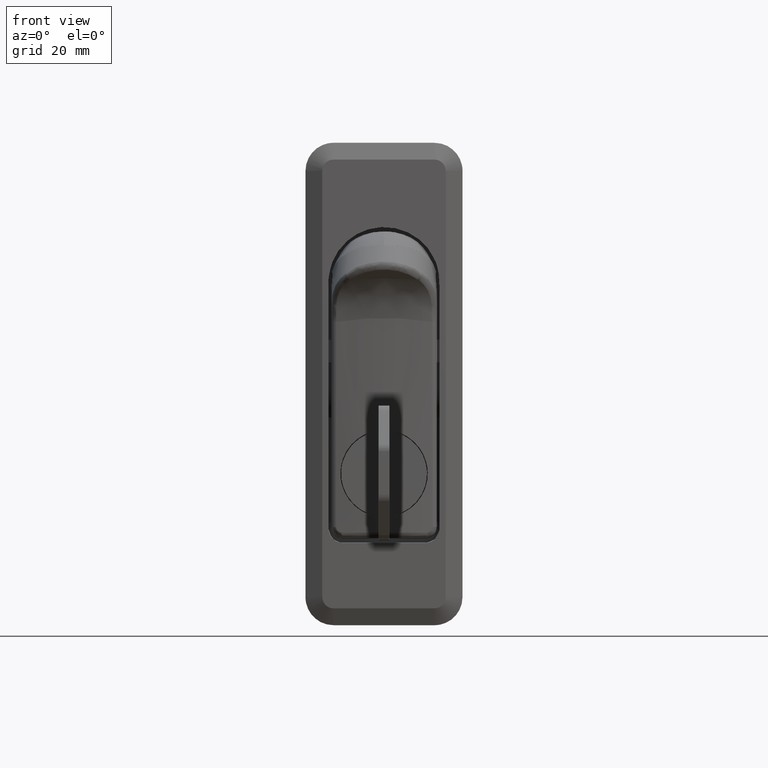
[diagram: clean part render]
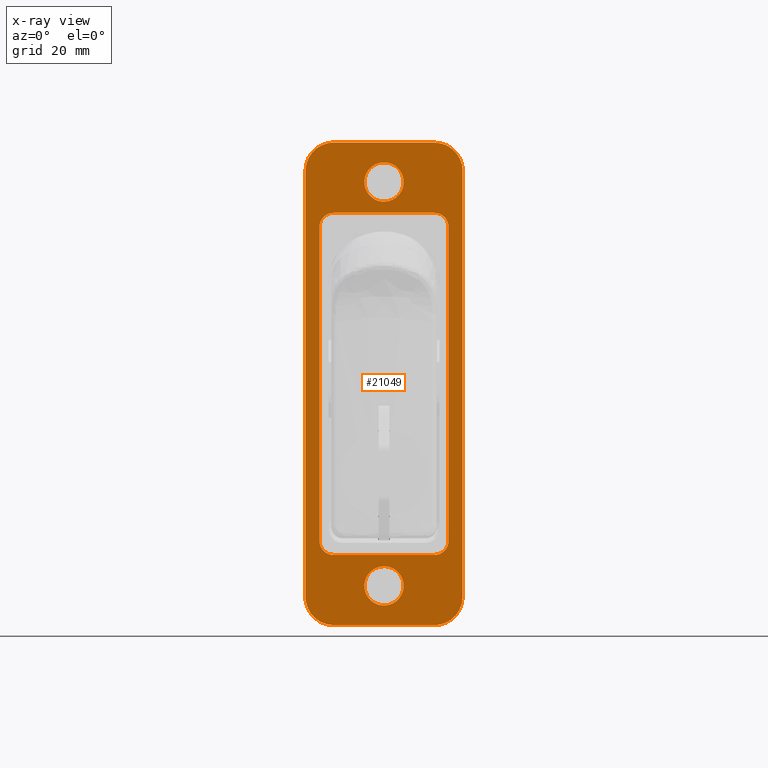
[diagram: x-ray — body ghosted, one internal face saturated and labeled with its STEP entity id]
A machine part, front view, then the same camera in x-ray: the body is ghosted and one INTERNAL B-rep face — a face not visible from any outside direction — is saturated and labeled: STEP entity #21049.
In plain terms, the highlighted face is a freeform B-spline surface patch.
Its self-contained STEP definition (entity closure, byte-faithful):
#14081=CARTESIAN_POINT('',(-3.677614E-015,-3.493471794421388,-54.213669889273618));
#14082=VERTEX_POINT('',#14081);
#14088=CARTESIAN_POINT('',(-3.552714E-015,0.0,-57.500000000000000));
#14089=VERTEX_POINT('',#14088);
#14090=CARTESIAN_POINT('',(-3.552714E-015,0.0,-57.500000000000000));
#14091=CARTESIAN_POINT('',(-3.552714E-015,-3.292471232467242,-57.499999999999993));
#14092=CARTESIAN_POINT('',(-3.677614E-015,-3.493471794421388,-54.213669889273618));
#14100=(BOUNDED_CURVE()B_SPLINE_CURVE(2,(#14090,#14091,#14092),.UNSPECIFIED.,.F.,.U.)B_SPLINE_CURVE_WITH_KNOTS((3,3),(0.500000000000000,0.739332962152903),.UNSPECIFIED.)CURVE()GEOMETRIC_REPRESENTATION_ITEM()RATIONAL_B_SPLINE_CURVE((1.0,0.719603993387512,0.976072041482317))REPRESENTATION_ITEM(''));
#14101=EDGE_CURVE('',#14089,#14082,#14100,.T.);
#14103=CARTESIAN_POINT('',(-3.675170E-015,1.230662910609450,-57.276502525628551));
#14104=VERTEX_POINT('',#14103);
#14105=CARTESIAN_POINT('',(-3.675170E-015,1.230662910609450,-57.276502525628551));
#14106=CARTESIAN_POINT('',(-3.552714E-015,0.635625851497328,-57.499999999999993));
#14107=CARTESIAN_POINT('',(-3.552714E-015,0.0,-57.500000000000000));
#14115=(BOUNDED_CURVE()B_SPLINE_CURVE(2,(#14105,#14106,#14107),.UNSPECIFIED.,.F.,.U.)B_SPLINE_CURVE_WITH_KNOTS((3,3),(0.440284170875872,0.500000000000000),.UNSPECIFIED.)CURVE()GEOMETRIC_REPRESENTATION_ITEM()RATIONAL_B_SPLINE_CURVE((0.893499554607573,0.930038554374880,1.0))REPRESENTATION_ITEM(''));
#14116=EDGE_CURVE('',#14104,#14089,#14115,.T.);
#14166=CARTESIAN_POINT('',(-3.552714E-015,0.0,-50.499999999999993));
#14167=VERTEX_POINT('',#14166);
#14168=CARTESIAN_POINT('',(-3.552714E-015,0.0,-50.499999999999993));
#14169=CARTESIAN_POINT('',(-3.552714E-015,3.500000000000000,-50.499999999999993));
#14170=CARTESIAN_POINT('',(-3.552714E-015,3.500000000000000,-54.0));
#14171=CARTESIAN_POINT('',(-3.552714E-015,3.500000000000000,-56.424133584552777));
#14172=CARTESIAN_POINT('',(-3.675170E-015,1.230662910609450,-57.276502525628544));
#14180=(BOUNDED_CURVE()B_SPLINE_CURVE(2,(#14168,#14169,#14170,#14171,#14172),.UNSPECIFIED.,.F.,.U.)B_SPLINE_CURVE_WITH_KNOTS((3,2,3),(0.0,0.250000000000000,0.440284170875872),.UNSPECIFIED.)CURVE()GEOMETRIC_REPRESENTATION_ITEM()RATIONAL_B_SPLINE_CURVE((1.0,0.707106781186547,1.0,0.777068226811668,0.893499554607573))REPRESENTATION_ITEM(''));
#14181=EDGE_CURVE('',#14167,#14104,#14180,.T.);
#14183=CARTESIAN_POINT('',(-3.677614E-015,-3.493471794421387,-54.213669889273618));
#14184=CARTESIAN_POINT('',(-3.552714E-015,-3.500000000000000,-54.106934672449221));
#14185=CARTESIAN_POINT('',(-3.552714E-015,-3.500000000000000,-54.0));
#14186=CARTESIAN_POINT('',(-3.552714E-015,-3.500000000000000,-50.499999999999993));
#14187=CARTESIAN_POINT('',(-3.552714E-015,0.0,-50.499999999999993));
#14195=(BOUNDED_CURVE()B_SPLINE_CURVE(2,(#14183,#14184,#14185,#14186,#14187),.UNSPECIFIED.,.F.,.U.)B_SPLINE_CURVE_WITH_KNOTS((3,2,3),(0.739332962152903,0.750000000000000,1.0),.UNSPECIFIED.)CURVE()GEOMETRIC_REPRESENTATION_ITEM()RATIONAL_B_SPLINE_CURVE((0.976072041482319,0.987502787799036,1.0,0.707106781186547,1.0))REPRESENTATION_ITEM(''));
#14196=EDGE_CURVE('',#14082,#14167,#14195,.T.);
#14409=CARTESIAN_POINT('',(-3.677614E-015,-3.493471794421388,17.786330110726372));
#14410=VERTEX_POINT('',#14409);
#14416=CARTESIAN_POINT('',(-3.552714E-015,0.0,14.500000000000000));
#14417=VERTEX_POINT('',#14416);
#14418=CARTESIAN_POINT('',(-3.552714E-015,0.0,14.500000000000000));
#14419=CARTESIAN_POINT('',(-3.552714E-015,-3.292471232467242,14.500000000000000));
#14420=CARTESIAN_POINT('',(-3.677614E-015,-3.493471794421388,17.786330110726368));
#14428=(BOUNDED_CURVE()B_SPLINE_CURVE(2,(#14418,#14419,#14420),.UNSPECIFIED.,.F.,.U.)B_SPLINE_CURVE_WITH_KNOTS((3,3),(0.500000000000000,0.739332962152903),.UNSPECIFIED.)CURVE()GEOMETRIC_REPRESENTATION_ITEM()RATIONAL_B_SPLINE_CURVE((1.0,0.719603993387512,0.976072041482317))REPRESENTATION_ITEM(''));
#14429=EDGE_CURVE('',#14417,#14410,#14428,.T.);
#14431=CARTESIAN_POINT('',(-3.422506E-015,1.230662910609452,14.723497474371451));
#14432=VERTEX_POINT('',#14431);
#14433=CARTESIAN_POINT('',(-3.422506E-015,1.230662910609452,14.723497474371449));
#14434=CARTESIAN_POINT('',(-3.552714E-015,0.635625851497329,14.499999999999998));
#14435=CARTESIAN_POINT('',(-3.552714E-015,0.0,14.500000000000000));
#14443=(BOUNDED_CURVE()B_SPLINE_CURVE(2,(#14433,#14434,#14435),.UNSPECIFIED.,.F.,.U.)B_SPLINE_CURVE_WITH_KNOTS((3,3),(0.440284170875872,0.500000000000000),.UNSPECIFIED.)CURVE()GEOMETRIC_REPRESENTATION_ITEM()RATIONAL_B_SPLINE_CURVE((0.893499554607573,0.930038554374879,1.0))REPRESENTATION_ITEM(''));
#14444=EDGE_CURVE('',#14432,#14417,#14443,.T.);
#14494=CARTESIAN_POINT('',(-3.552714E-015,0.0,21.500000000000000));
#14495=VERTEX_POINT('',#14494);
#14496=CARTESIAN_POINT('',(-3.552714E-015,0.0,21.500000000000000));
#14497=CARTESIAN_POINT('',(-3.552714E-015,3.500000000000000,21.500000000000000));
#14498=CARTESIAN_POINT('',(-3.552714E-015,3.500000000000000,18.0));
#14499=CARTESIAN_POINT('',(-3.552714E-015,3.500000000000000,15.575866415447225));
#14500=CARTESIAN_POINT('',(-3.422506E-015,1.230662910609452,14.723497474371452));
#14508=(BOUNDED_CURVE()B_SPLINE_CURVE(2,(#14496,#14497,#14498,#14499,#14500),.UNSPECIFIED.,.F.,.U.)B_SPLINE_CURVE_WITH_KNOTS((3,2,3),(0.0,0.250000000000000,0.440284170875871),.UNSPECIFIED.)CURVE()GEOMETRIC_REPRESENTATION_ITEM()RATIONAL_B_SPLINE_CURVE((1.0,0.707106781186547,1.0,0.777068226811668,0.893499554607572))REPRESENTATION_ITEM(''));
#14509=EDGE_CURVE('',#14495,#14432,#14508,.T.);
#14511=CARTESIAN_POINT('',(-3.677614E-015,-3.493471794421388,17.786330110726372));
#14512=CARTESIAN_POINT('',(-3.552714E-015,-3.500000000000000,17.893065327550779));
#14513=CARTESIAN_POINT('',(-3.552714E-015,-3.500000000000000,18.0));
#14514=CARTESIAN_POINT('',(-3.552714E-015,-3.500000000000000,21.500000000000000));
#14515=CARTESIAN_POINT('',(-3.552714E-015,0.0,21.500000000000000));
#14523=(BOUNDED_CURVE()B_SPLINE_CURVE(2,(#14511,#14512,#14513,#14514,#14515),.UNSPECIFIED.,.F.,.U.)B_SPLINE_CURVE_WITH_KNOTS((3,2,3),(0.739332962152903,0.750000000000000,1.0),.UNSPECIFIED.)CURVE()GEOMETRIC_REPRESENTATION_ITEM()RATIONAL_B_SPLINE_CURVE((0.976072041482318,0.987502787799036,1.0,0.707106781186547,1.0))REPRESENTATION_ITEM(''));
#14524=EDGE_CURVE('',#14410,#14495,#14523,.T.);
#18221=CARTESIAN_POINT('',(0.0,-11.500000000000121,10.0));
#18222=VERTEX_POINT('',#18221);
#18229=CARTESIAN_POINT('',(0.0,-9.000000000000119,12.500000000000000));
#18230=VERTEX_POINT('',#18229);
#18236=CARTESIAN_POINT('',(0.0,-11.500000000000110,10.0));
#18237=CARTESIAN_POINT('',(0.0,-11.500000000000107,12.500000000000000));
#18238=CARTESIAN_POINT('',(0.0,-9.000000000000108,12.500000000000000));
#18246=(BOUNDED_CURVE()B_SPLINE_CURVE(2,(#18236,#18237,#18238),.UNSPECIFIED.,.F.,.U.)CURVE()GEOMETRIC_REPRESENTATION_ITEM()QUASI_UNIFORM_CURVE()RATIONAL_B_SPLINE_CURVE((1.0,0.707106781186548,1.0))REPRESENTATION_ITEM(''));
#18247=EDGE_CURVE('',#18222,#18230,#18246,.T.);
#18266=CARTESIAN_POINT('',(0.0,9.0,12.500000000000000));
#18267=VERTEX_POINT('',#18266);
#18274=CARTESIAN_POINT('',(0.0,11.500000000000000,10.0));
#18275=VERTEX_POINT('',#18274);
#18281=CARTESIAN_POINT('',(0.0,9.0,12.500000000000000));
#18282=CARTESIAN_POINT('',(0.0,11.500000000000000,12.500000000000000));
#18283=CARTESIAN_POINT('',(0.0,11.500000000000000,10.0));
#18291=(BOUNDED_CURVE()B_SPLINE_CURVE(2,(#18281,#18282,#18283),.UNSPECIFIED.,.F.,.U.)CURVE()GEOMETRIC_REPRESENTATION_ITEM()QUASI_UNIFORM_CURVE()RATIONAL_B_SPLINE_CURVE((1.0,0.707106781186548,1.0))REPRESENTATION_ITEM(''));
#18292=EDGE_CURVE('',#18267,#18275,#18291,.T.);
#19010=CARTESIAN_POINT('',(0.0,11.500000000000000,-45.989129150267701));
#19011=VERTEX_POINT('',#19010);
#19026=CARTESIAN_POINT('',(0.0,9.0,-48.489689625733803));
#19027=VERTEX_POINT('',#19026);
#19041=CARTESIAN_POINT('',(0.0,11.500000000000000,-45.989129150267701));
#19042=CARTESIAN_POINT('',(0.0,11.500000000000000,-46.154215383934769));
#19043=CARTESIAN_POINT('',(0.0,11.483816064185840,-46.316545601772731));
#19044=CARTESIAN_POINT('',(0.0,11.436256324752920,-46.556075847320741));
#19045=CARTESIAN_POINT('',(0.0,11.416493622283401,-46.635253508343197));
#19046=CARTESIAN_POINT('',(0.0,11.368971266891981,-46.792247003309441));
#19047=CARTESIAN_POINT('',(0.0,11.341075858766819,-46.870281027129572));
#19048=CARTESIAN_POINT('',(0.0,11.247081613631609,-47.097285296645850));
#19049=CARTESIAN_POINT('',(0.0,11.170387799035350,-47.240845623781517));
#19050=CARTESIAN_POINT('',(0.0,11.057141126077690,-47.410664514096752));
#19051=CARTESIAN_POINT('',(0.0,11.033615006363030,-47.444142385285232));
#19052=CARTESIAN_POINT('',(0.0,10.984781268572140,-47.510110836388613));
#19053=CARTESIAN_POINT('',(0.0,10.959405133532210,-47.542683516857593));
#19054=CARTESIAN_POINT('',(0.0,10.881067156385379,-47.638253861385252));
#19055=CARTESIAN_POINT('',(0.0,10.826108208209799,-47.698896246355751));
#19056=CARTESIAN_POINT('',(0.0,10.653287457166130,-47.871898583125670));
#19057=CARTESIAN_POINT('',(0.0,10.527556822738241,-47.975418061977933));
#19058=CARTESIAN_POINT('',(0.0,10.356938074372319,-48.089700478894308));
#19059=CARTESIAN_POINT('',(0.0,10.322035410330709,-48.111851774601533));
#19060=CARTESIAN_POINT('',(0.0,10.251472245985420,-48.154221848664271));
#19061=CARTESIAN_POINT('',(0.0,10.215800250058919,-48.174456756970230));
#19062=CARTESIAN_POINT('',(0.0,10.107634747065740,-48.232363969213431));
#19063=CARTESIAN_POINT('',(0.0,9.960354127934409,-48.302126755310972));
#19064=CARTESIAN_POINT('',(0.0,9.807047482233891,-48.357224328191009));
#19065=CARTESIAN_POINT('',(0.0,9.689777495506567,-48.392974453394508));
#19066=CARTESIAN_POINT('',(0.0,9.650305159462015,-48.403960680585243));
#19067=CARTESIAN_POINT('',(0.0,9.570582232988475,-48.424039139586100));
#19068=CARTESIAN_POINT('',(0.0,9.530255426601258,-48.433143262091860));
#19069=CARTESIAN_POINT('',(0.0,9.328376248249898,-48.473492515968111));
#19070=CARTESIAN_POINT('',(0.0,9.165087300600289,-48.489689625733810));
#19071=CARTESIAN_POINT('',(0.0,8.999999999999998,-48.489689625733803));
#19072=B_SPLINE_CURVE_WITH_KNOTS('',3,(#19041,#19042,#19043,#19044,#19045,#19046,#19047,#19048,#19049,#19050,#19051,#19052,#19053,#19054,#19055,#19056,#19057,#19058,#19059,#19060,#19061,#19062,#19063,#19064,#19065,#19066,#19067,#19068,#19069,#19070,#19071),.UNSPECIFIED.,.F.,.U.,(4,2,2,2,2,2,2,2,2,2,2,1,2,2,2,4),(0.0,0.124999999999995,0.187499999999992,0.249999999999990,0.374999999999985,0.406249999999987,0.437499999999990,0.499999999999994,0.625000000000004,0.656250000000005,0.687500000000005,0.750000000000005,0.812500000000004,0.843750000000003,0.875000000000002,1.0),.UNSPECIFIED.);
#19073=EDGE_CURVE('',#19011,#19027,#19072,.T.);
#19095=CARTESIAN_POINT('',(0.0,-9.000000000000119,-48.489689625733803));
#19096=VERTEX_POINT('',#19095);
#19111=CARTESIAN_POINT('',(0.0,-11.500000000000121,-45.989129150267701));
#19112=VERTEX_POINT('',#19111);
#19126=CARTESIAN_POINT('',(-1.430700E-016,-9.000000000000119,-48.489689625733803));
#19127=CARTESIAN_POINT('',(-1.430700E-016,-9.165086658248500,-48.489689625733803));
#19128=CARTESIAN_POINT('',(-1.552930E-032,-9.327415141307306,-48.473494599859237));
#19129=CARTESIAN_POINT('',(0.0,-9.566939927793406,-48.425903736678727));
#19130=CARTESIAN_POINT('',(0.0,-9.646115286503532,-48.406128209653907));
#19131=CARTESIAN_POINT('',(0.0,-9.803103203583708,-48.358575275646579));
#19132=CARTESIAN_POINT('',(0.0,-9.881130554903850,-48.330663090618920));
#19133=CARTESIAN_POINT('',(0.0,-10.108107379448599,-48.236616744681427));
#19134=CARTESIAN_POINT('',(0.0,-10.251646394486629,-48.159882629747742));
#19135=CARTESIAN_POINT('',(0.0,-10.421435447159030,-48.046579656471451));
#19136=CARTESIAN_POINT('',(0.0,-10.454907188129891,-48.023041975302533));
#19137=CARTESIAN_POINT('',(0.0,-10.520863057209709,-47.974184518411221));
#19138=CARTESIAN_POINT('',(0.0,-10.553430328561729,-47.948795240157281));
#19139=CARTESIAN_POINT('',(0.0,-10.648968621109500,-47.870430382560620));
#19140=CARTESIAN_POINT('',(0.0,-10.709590152545490,-47.815453349527338));
#19141=CARTESIAN_POINT('',(0.0,-10.882531384915829,-47.642577831172979));
#19142=CARTESIAN_POINT('',(0.0,-10.986012051576100,-47.516810003044718));
#19143=CARTESIAN_POINT('',(0.0,-11.100248339426431,-47.346143822532973));
#19144=CARTESIAN_POINT('',(0.0,-11.122389993413160,-47.311232204602867));
#19145=CARTESIAN_POINT('',(0.0,-11.164735294533530,-47.240662015767967));
#19146=CARTESIAN_POINT('',(0.0,-11.184958447210549,-47.204986480379389));
#19147=CARTESIAN_POINT('',(0.0,-11.242832155562549,-47.096810240034088));
#19148=CARTESIAN_POINT('',(0.0,-11.312554993892361,-46.949515000535527));
#19149=CARTESIAN_POINT('',(0.0,-11.367620935710750,-46.796192730319319));
#19150=CARTESIAN_POINT('',(0.0,-11.403350295212300,-46.678910560172227));
#19151=CARTESIAN_POINT('',(0.0,-11.414330090033859,-46.639434083589400));
#19152=CARTESIAN_POINT('',(0.0,-11.434396642376390,-46.559702698649239));
#19153=CARTESIAN_POINT('',(0.0,-11.443494633043599,-46.519374128018477));
#19154=CARTESIAN_POINT('',(0.0,-11.483814233400540,-46.317500554687328));
#19155=CARTESIAN_POINT('',(0.0,-11.500000000000121,-46.154214761178757));
#19156=CARTESIAN_POINT('',(0.0,-11.500000000000121,-45.989129150267701));
#19157=B_SPLINE_CURVE_WITH_KNOTS('',3,(#19126,#19127,#19128,#19129,#19130,#19131,#19132,#19133,#19134,#19135,#19136,#19137,#19138,#19139,#19140,#19141,#19142,#19143,#19144,#19145,#19146,#19147,#19148,#19149,#19150,#19151,#19152,#19153,#19154,#19155,#19156),.UNSPECIFIED.,.F.,.U.,(4,2,2,2,2,2,2,2,2,2,2,1,2,2,2,4),(0.0,0.124999999999996,0.187499999999993,0.249999999999991,0.374999999999987,0.406249999999987,0.437499999999986,0.499999999999988,0.624999999999998,0.656250000000002,0.687500000000007,0.750000000000012,0.812500000000016,0.843750000000016,0.875000000000016,1.0),.UNSPECIFIED.);
#19158=EDGE_CURVE('',#19096,#19112,#19157,.T.);
#20201=CARTESIAN_POINT('',(0.0,-9.000000000000119,12.500000000000000));
#20202=CARTESIAN_POINT('',(0.0,9.0,12.500000000000000));
#20203=QUASI_UNIFORM_CURVE('',1,(#20201,#20202),.UNSPECIFIED.,.F.,.U.);
#20204=EDGE_CURVE('',#18230,#18267,#20203,.T.);
#20417=CARTESIAN_POINT('',(0.0,-9.000000000000119,-48.489689625733803));
#20418=CARTESIAN_POINT('',(0.0,9.0,-48.489689625733803));
#20419=QUASI_UNIFORM_CURVE('',1,(#20417,#20418),.UNSPECIFIED.,.F.,.U.);
#20420=EDGE_CURVE('',#19096,#19027,#20419,.T.);
#20608=CARTESIAN_POINT('',(0.0,-11.500000000000121,10.0));
#20609=CARTESIAN_POINT('',(0.0,-11.500000000000121,-45.989129150267701));
#20610=QUASI_UNIFORM_CURVE('',1,(#20608,#20609),.UNSPECIFIED.,.F.,.U.);
#20611=EDGE_CURVE('',#18222,#19112,#20610,.T.);
#20652=CARTESIAN_POINT('',(0.0,11.500000000000000,-45.989129150267701));
#20653=CARTESIAN_POINT('',(0.0,11.500000000000000,10.0));
#20654=QUASI_UNIFORM_CURVE('',1,(#20652,#20653),.UNSPECIFIED.,.F.,.U.);
#20655=EDGE_CURVE('',#19011,#18275,#20654,.T.);
#20667=CARTESIAN_POINT('',(0.0,8.999999999999890,25.0));
#20668=VERTEX_POINT('',#20667);
#20675=CARTESIAN_POINT('',(0.0,-9.0,25.0));
#20676=VERTEX_POINT('',#20675);
#20682=CARTESIAN_POINT('',(0.0,8.999999999999890,25.0));
#20683=CARTESIAN_POINT('',(0.0,-9.0,25.0));
#20684=QUASI_UNIFORM_CURVE('',1,(#20682,#20683),.UNSPECIFIED.,.F.,.U.);
#20685=EDGE_CURVE('',#20668,#20676,#20684,.T.);
#20704=CARTESIAN_POINT('',(0.0,14.0,20.0));
#20705=VERTEX_POINT('',#20704);
#20713=CARTESIAN_POINT('',(0.0,14.0,20.0));
#20714=CARTESIAN_POINT('',(0.0,13.999999999999892,25.0));
#20715=CARTESIAN_POINT('',(0.0,8.999999999999890,25.0));
#20723=(BOUNDED_CURVE()B_SPLINE_CURVE(2,(#20713,#20714,#20715),.UNSPECIFIED.,.F.,.U.)CURVE()GEOMETRIC_REPRESENTATION_ITEM()QUASI_UNIFORM_CURVE()RATIONAL_B_SPLINE_CURVE((1.0,0.707106781186548,1.0))REPRESENTATION_ITEM(''));
#20724=EDGE_CURVE('',#20705,#20668,#20723,.T.);
#20734=CARTESIAN_POINT('',(0.0,14.0,-56.0));
#20735=VERTEX_POINT('',#20734);
#20743=CARTESIAN_POINT('',(0.0,14.0,-56.0));
#20744=CARTESIAN_POINT('',(0.0,14.0,20.0));
#20745=QUASI_UNIFORM_CURVE('',1,(#20743,#20744),.UNSPECIFIED.,.F.,.U.);
#20746=EDGE_CURVE('',#20735,#20705,#20745,.T.);
#20765=CARTESIAN_POINT('',(0.0,9.0,-61.0));
#20766=VERTEX_POINT('',#20765);
#20774=CARTESIAN_POINT('',(0.0,9.0,-61.0));
#20775=CARTESIAN_POINT('',(0.0,13.999999999999998,-60.999999999999993));
#20776=CARTESIAN_POINT('',(0.0,14.0,-56.0));
#20784=(BOUNDED_CURVE()B_SPLINE_CURVE(2,(#20774,#20775,#20776),.UNSPECIFIED.,.F.,.U.)CURVE()GEOMETRIC_REPRESENTATION_ITEM()QUASI_UNIFORM_CURVE()RATIONAL_B_SPLINE_CURVE((1.0,0.707106781186548,1.0))REPRESENTATION_ITEM(''));
#20785=EDGE_CURVE('',#20766,#20735,#20784,.T.);
#20795=CARTESIAN_POINT('',(0.0,-9.0,-61.0));
#20796=VERTEX_POINT('',#20795);
#20804=CARTESIAN_POINT('',(0.0,-9.0,-61.0));
#20805=CARTESIAN_POINT('',(0.0,9.0,-61.0));
#20806=QUASI_UNIFORM_CURVE('',1,(#20804,#20805),.UNSPECIFIED.,.F.,.U.);
#20807=EDGE_CURVE('',#20796,#20766,#20806,.T.);
#20826=CARTESIAN_POINT('',(0.0,-14.0,-56.0));
#20827=VERTEX_POINT('',#20826);
#20835=CARTESIAN_POINT('',(0.0,-14.0,-56.0));
#20836=CARTESIAN_POINT('',(0.0,-13.999999999999998,-60.999999999999993));
#20837=CARTESIAN_POINT('',(0.0,-9.0,-61.0));
#20845=(BOUNDED_CURVE()B_SPLINE_CURVE(2,(#20835,#20836,#20837),.UNSPECIFIED.,.F.,.U.)CURVE()GEOMETRIC_REPRESENTATION_ITEM()QUASI_UNIFORM_CURVE()RATIONAL_B_SPLINE_CURVE((1.0,0.707106781186548,1.0))REPRESENTATION_ITEM(''));
#20846=EDGE_CURVE('',#20827,#20796,#20845,.T.);
#20856=CARTESIAN_POINT('',(0.0,-14.0,20.0));
#20857=VERTEX_POINT('',#20856);
#20865=CARTESIAN_POINT('',(0.0,-14.0,20.0));
#20866=CARTESIAN_POINT('',(0.0,-14.0,-56.0));
#20867=QUASI_UNIFORM_CURVE('',1,(#20865,#20866),.UNSPECIFIED.,.F.,.U.);
#20868=EDGE_CURVE('',#20857,#20827,#20867,.T.);
#20890=CARTESIAN_POINT('',(0.0,-9.0,25.0));
#20891=CARTESIAN_POINT('',(0.0,-13.999999999999998,25.0));
#20892=CARTESIAN_POINT('',(0.0,-14.0,20.0));
#20900=(BOUNDED_CURVE()B_SPLINE_CURVE(2,(#20890,#20891,#20892),.UNSPECIFIED.,.F.,.U.)CURVE()GEOMETRIC_REPRESENTATION_ITEM()QUASI_UNIFORM_CURVE()RATIONAL_B_SPLINE_CURVE((1.0,0.707106781186548,1.0))REPRESENTATION_ITEM(''));
#20901=EDGE_CURVE('',#20676,#20857,#20900,.T.);
#21012=CARTESIAN_POINT('',(0.0,-15.398599945730570,29.295699833315322));
#21013=CARTESIAN_POINT('',(0.0,15.398600696749090,29.295699833315322));
#21014=CARTESIAN_POINT('',(0.0,-15.398599945730570,-65.295702140015067));
#21015=CARTESIAN_POINT('',(0.0,15.398600696749090,-65.295702140015067));
#21016=B_SPLINE_SURFACE_WITH_KNOTS('',1,1,((#21012,#21014),(#21013,#21015)),.UNSPECIFIED.,.F.,.F.,.U.,(2,2),(2,2),(0.0,30.797200642479670),(0.0,94.591401973330392),.UNSPECIFIED.);
#21017=ORIENTED_EDGE('',*,*,#20901,.T.);
#21018=ORIENTED_EDGE('',*,*,#20868,.T.);
#21019=ORIENTED_EDGE('',*,*,#20846,.T.);
#21020=ORIENTED_EDGE('',*,*,#20807,.T.);
#21021=ORIENTED_EDGE('',*,*,#20785,.T.);
#21022=ORIENTED_EDGE('',*,*,#20746,.T.);
#21023=ORIENTED_EDGE('',*,*,#20724,.T.);
#21024=ORIENTED_EDGE('',*,*,#20685,.T.);
#21025=EDGE_LOOP('',(#21017,#21018,#21019,#21020,#21021,#21022,#21023,#21024));
#21026=FACE_OUTER_BOUND('',#21025,.T.);
#21027=ORIENTED_EDGE('',*,*,#20611,.F.);
#21028=ORIENTED_EDGE('',*,*,#18247,.T.);
#21029=ORIENTED_EDGE('',*,*,#20204,.T.);
#21030=ORIENTED_EDGE('',*,*,#18292,.T.);
#21031=ORIENTED_EDGE('',*,*,#20655,.F.);
#21032=ORIENTED_EDGE('',*,*,#19073,.T.);
#21033=ORIENTED_EDGE('',*,*,#20420,.F.);
#21034=ORIENTED_EDGE('',*,*,#19158,.T.);
#21035=EDGE_LOOP('',(#21027,#21028,#21029,#21030,#21031,#21032,#21033,#21034));
#21036=FACE_BOUND('',#21035,.T.);
#21037=ORIENTED_EDGE('',*,*,#14429,.T.);
#21038=ORIENTED_EDGE('',*,*,#14524,.T.);
#21039=ORIENTED_EDGE('',*,*,#14509,.T.);
#21040=ORIENTED_EDGE('',*,*,#14444,.T.);
#21041=EDGE_LOOP('',(#21037,#21038,#21039,#21040));
#21042=FACE_BOUND('',#21041,.T.);
#21043=ORIENTED_EDGE('',*,*,#14101,.T.);
#21044=ORIENTED_EDGE('',*,*,#14196,.T.);
#21045=ORIENTED_EDGE('',*,*,#14181,.T.);
#21046=ORIENTED_EDGE('',*,*,#14116,.T.);
#21047=EDGE_LOOP('',(#21043,#21044,#21045,#21046));
#21048=FACE_BOUND('',#21047,.T.);
#21049=ADVANCED_FACE('',(#21026,#21036,#21042,#21048),#21016,.F.);